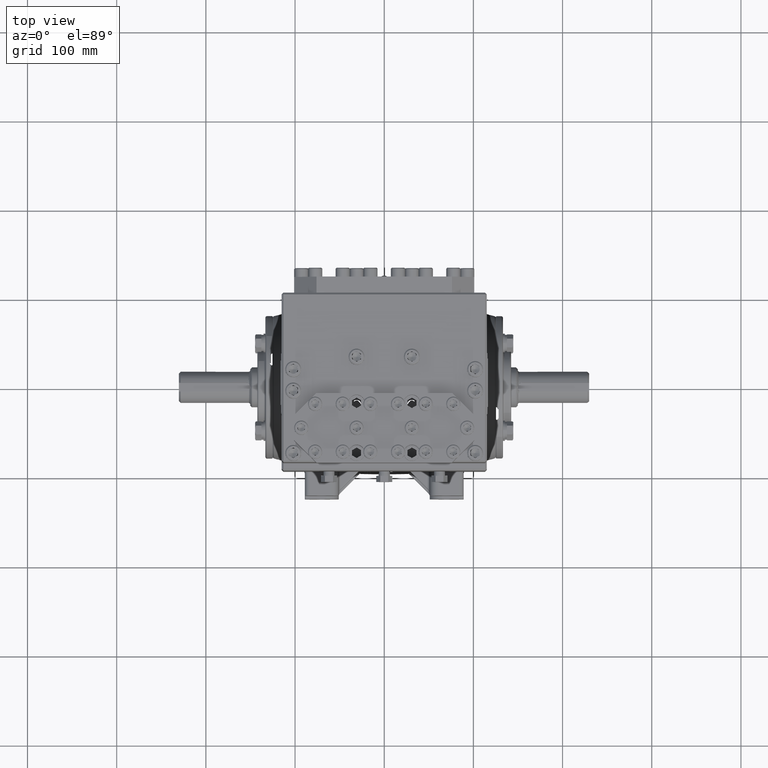
[diagram: clean part render]
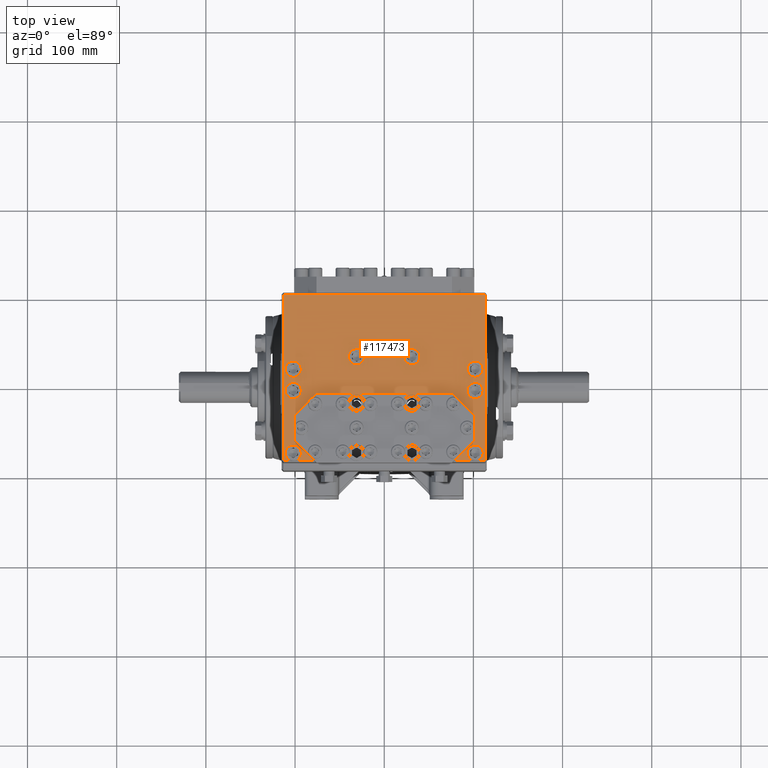
[diagram: same view with one face highlighted and labeled with its STEP entity id]
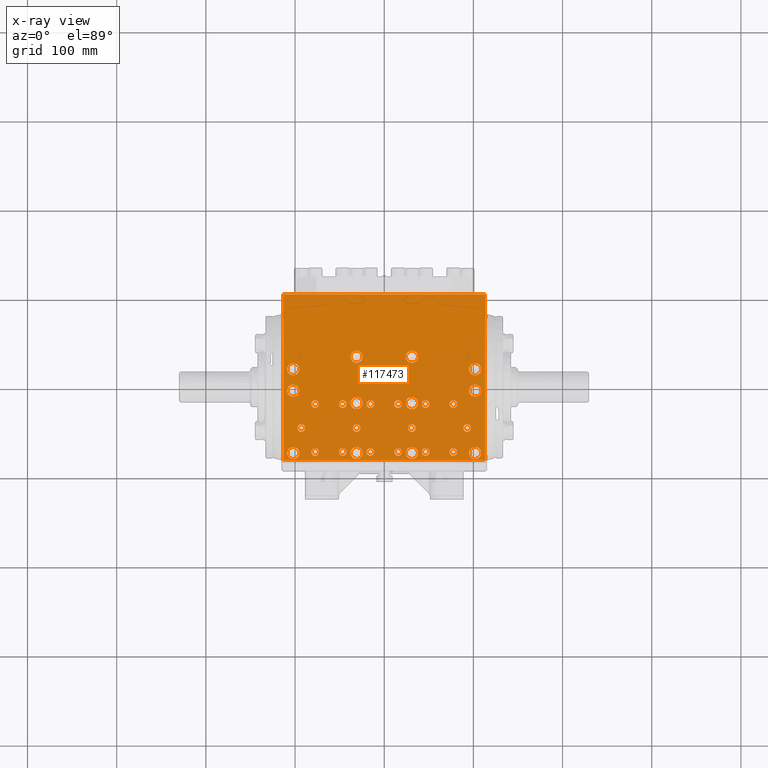
[diagram: x-ray of the same camera — body ghosted, the highlighted face saturated]
A machine part, top view. The second image highlights one B-rep face of the part: STEP entity #117473.
The next image is the same camera in x-ray: the body ghosted, the highlighted face saturated — about 0% of this face is hidden behind the body in this view.
In plain terms, the highlighted planar face has unit normal (0, 0, -1).
Its self-contained STEP definition (entity closure, byte-faithful):
#231 = EDGE_LOOP ( 'NONE', ( #53574, #17172 ) ) ;
#654 = VERTEX_POINT ( 'NONE', #63499 ) ;
#691 = CARTESIAN_POINT ( 'NONE',  ( 1.486220472440945795, -1.023622047244092892, 18.66141732283464805 ) ) ;
#767 = EDGE_CURVE ( 'NONE', #62377, #109572, #72662, .T. ) ;
#919 = LINE ( 'NONE', #37255, #89101 ) ;
#1357 = DIRECTION ( 'NONE',  ( -0.0000000000000000000, -0.0000000000000000000, 1.000000000000000000 ) ) ;
#1542 = CARTESIAN_POINT ( 'NONE',  ( 4.448818897637798031, -3.543307086614170931, 18.66141732283464805 ) ) ;
#1677 = DIRECTION ( 'NONE',  ( -0.0000000000000000000, -0.0000000000000000000, 1.000000000000000000 ) ) ;
#1749 = AXIS2_PLACEMENT_3D ( 'NONE', #16543, #80413, #116817 ) ;
#2075 = DIRECTION ( 'NONE',  ( 1.000000000000000000, 0.0000000000000000000, 0.0000000000000000000 ) ) ;
#2335 = AXIS2_PLACEMENT_3D ( 'NONE', #67464, #103953, #22153 ) ;
#2367 = EDGE_LOOP ( 'NONE', ( #57965, #40329 ) ) ;
#2385 = VERTEX_POINT ( 'NONE', #67120 ) ;
#2549 = DIRECTION ( 'NONE',  ( -0.0000000000000000000, -0.0000000000000000000, 1.000000000000000000 ) ) ;
#3156 = ORIENTED_EDGE ( 'NONE', *, *, #104555, .T. ) ;
#3295 = EDGE_CURVE ( 'NONE', #83297, #21803, #85738, .T. ) ;
#3501 = CARTESIAN_POINT ( 'NONE',  ( -3.749999999999999556, 0.4724409448818914226, 18.66141732283464805 ) ) ;
#3792 = CARTESIAN_POINT ( 'NONE',  ( -1.486220472440943130, -3.228346456692912092, 18.66141732283464805 ) ) ;
#3861 = EDGE_CURVE ( 'NONE', #77365, #69413, #9790, .T. ) ;
#3954 = AXIS2_PLACEMENT_3D ( 'NONE', #88899, #7112, #43461 ) ;
#4010 = FACE_BOUND ( 'NONE', #62597, .T. ) ;
#4183 = DIRECTION ( 'NONE',  ( -0.0000000000000000000, -0.0000000000000000000, 1.000000000000000000 ) ) ;
#4600 = FACE_BOUND ( 'NONE', #75060, .T. ) ;
#4607 = ORIENTED_EDGE ( 'NONE', *, *, #26883, .F. ) ;
#4669 = CIRCLE ( 'NONE', #71360, 0.1673228346456689108 ) ;
#4858 = VERTEX_POINT ( 'NONE', #38227 ) ;
#4898 = DIRECTION ( 'NONE',  ( -0.0000000000000000000, -0.0000000000000000000, 1.000000000000000000 ) ) ;
#4955 = CARTESIAN_POINT ( 'NONE',  ( -0.6102362204724381956, -1.069024113491431560, 18.66141732283464805 ) ) ;
#5198 = AXIS2_PLACEMENT_3D ( 'NONE', #74025, #110447, #28613 ) ;
#5547 = DIRECTION ( 'NONE',  ( -0.0000000000000000000, -0.0000000000000000000, 1.000000000000000000 ) ) ;
#5767 = VERTEX_POINT ( 'NONE', #46868 ) ;
#6239 = CARTESIAN_POINT ( 'NONE',  ( -2.883858267716538748, -3.182944390445576310, 18.66141732283464805 ) ) ;
#6495 = ORIENTED_EDGE ( 'NONE', *, *, #43940, .F. ) ;
#6823 = DIRECTION ( 'NONE',  ( 1.000000000000000000, 0.0000000000000000000, 0.0000000000000000000 ) ) ;
#6870 = AXIS2_PLACEMENT_3D ( 'NONE', #25161, #61507, #98032 ) ;
#6876 = ORIENTED_EDGE ( 'NONE', *, *, #8300, .F. ) ;
#6924 = ORIENTED_EDGE ( 'NONE', *, *, #85163, .F. ) ;
#6948 = EDGE_LOOP ( 'NONE', ( #4607, #16210 ) ) ;
#7112 = DIRECTION ( 'NONE',  ( -0.0000000000000000000, -0.0000000000000000000, 1.000000000000000000 ) ) ;
#7711 = DIRECTION ( 'NONE',  ( -0.0000000000000000000, -0.0000000000000000000, 1.000000000000000000 ) ) ;
#7732 = AXIS2_PLACEMENT_3D ( 'NONE', #111251, #29416, #65815 ) ;
#7925 = ORIENTED_EDGE ( 'NONE', *, *, #31826, .F. ) ;
#8300 = EDGE_CURVE ( 'NONE', #33305, #72351, #14821, .T. ) ;
#8882 = VERTEX_POINT ( 'NONE', #76394 ) ;
#9106 = ORIENTED_EDGE ( 'NONE', *, *, #109633, .F. ) ;
#9121 = CARTESIAN_POINT ( 'NONE',  ( -0.4429133858267703672, -3.182944390445575866, 18.66141732283464805 ) ) ;
#9344 = DIRECTION ( 'NONE',  ( 1.000000000000000000, 0.0000000000000000000, 0.0000000000000000000 ) ) ;
#9375 = DIRECTION ( 'NONE',  ( 1.000000000000000000, 0.0000000000000000000, 0.0000000000000000000 ) ) ;
#9517 = DIRECTION ( 'NONE',  ( -0.0000000000000000000, -0.0000000000000000000, 1.000000000000000000 ) ) ;
#9647 = EDGE_LOOP ( 'NONE', ( #86387, #57662 ) ) ;
#9790 = CIRCLE ( 'NONE', #61186, 0.1673228346456689108 ) ;
#9861 = ORIENTED_EDGE ( 'NONE', *, *, #118156, .F. ) ;
#9950 = DIRECTION ( 'NONE',  ( -0.0000000000000000000, -0.0000000000000000000, 1.000000000000000000 ) ) ;
#10308 = VERTEX_POINT ( 'NONE', #92476 ) ;
#10837 = DIRECTION ( 'NONE',  ( -0.0000000000000000000, -0.0000000000000000000, 1.000000000000000000 ) ) ;
#11141 = DIRECTION ( 'NONE',  ( 1.000000000000000000, 0.0000000000000000000, 0.0000000000000000000 ) ) ;
#11692 = AXIS2_PLACEMENT_3D ( 'NONE', #85946, #4183, #40520 ) ;
#12022 = CIRCLE ( 'NONE', #78733, 0.2657480314960626866 ) ;
#12109 = CARTESIAN_POINT ( 'NONE',  ( -1.053149606299212948, -2.125984251968504157, 18.66141732283464805 ) ) ;
#12200 = ORIENTED_EDGE ( 'NONE', *, *, #89903, .F. ) ;
#12577 = AXIS2_PLACEMENT_3D ( 'NONE', #35110, #71555, #108012 ) ;
#12780 = DIRECTION ( 'NONE',  ( 1.000000000000000000, 0.0000000000000000000, 0.0000000000000000000 ) ) ;
#12854 = CARTESIAN_POINT ( 'NONE',  ( -0.7775590551181070786, -1.069024113491431560, 18.66141732283464805 ) ) ;
#12969 = FACE_BOUND ( 'NONE', #72077, .T. ) ;
#13051 = CARTESIAN_POINT ( 'NONE',  ( 4.448818897637798031, 3.779527559055121166, 18.66141732283464805 ) ) ;
#13425 = VERTEX_POINT ( 'NONE', #23093 ) ;
#13487 = CARTESIAN_POINT ( 'NONE',  ( 3.051181102362207742, -3.182944390445576754, 18.66141732283464805 ) ) ;
#13544 = FACE_BOUND ( 'NONE', #52581, .T. ) ;
#13615 = DIRECTION ( 'NONE',  ( 1.000000000000000000, 0.0000000000000000000, 0.0000000000000000000 ) ) ;
#13785 = EDGE_LOOP ( 'NONE', ( #113084, #18094 ) ) ;
#13818 = VERTEX_POINT ( 'NONE', #6239 ) ;
#13828 = CARTESIAN_POINT ( 'NONE',  ( 0.6102362204724385286, -1.069024113491431560, 18.66141732283464805 ) ) ;
#14043 = ORIENTED_EDGE ( 'NONE', *, *, #49530, .F. ) ;
#14138 = DIRECTION ( 'NONE',  ( 0.0000000000000000000, 0.0000000000000000000, -1.000000000000000000 ) ) ;
#14196 = CIRCLE ( 'NONE', #80917, 0.1673228346456689108 ) ;
#14276 = EDGE_CURVE ( 'NONE', #63968, #28327, #95436, .T. ) ;
#14605 = AXIS2_PLACEMENT_3D ( 'NONE', #86679, #4898, #41240 ) ;
#14821 = CIRCLE ( 'NONE', #81541, 0.2657480314960625756 ) ;
#14867 = DIRECTION ( 'NONE',  ( 1.000000000000000000, 0.0000000000000000000, 0.0000000000000000000 ) ) ;
#15031 = EDGE_CURVE ( 'NONE', #79754, #73040, #84053, .T. ) ;
#15680 = EDGE_LOOP ( 'NONE', ( #14043, #33947 ) ) ;
#15946 = DIRECTION ( 'NONE',  ( -0.0000000000000000000, -0.0000000000000000000, 1.000000000000000000 ) ) ;
#15961 = DIRECTION ( 'NONE',  ( -0.0000000000000000000, -0.0000000000000000000, 1.000000000000000000 ) ) ;
#16071 = CARTESIAN_POINT ( 'NONE',  ( 4.015748031496063852, -3.228346456692912092, 18.66141732283464805 ) ) ;
#16210 = ORIENTED_EDGE ( 'NONE', *, *, #3295, .F. ) ;
#16211 = CARTESIAN_POINT ( 'NONE',  ( 4.015748031496062964, -0.4724409448818881474, 18.66141732283464805 ) ) ;
#16310 = ORIENTED_EDGE ( 'NONE', *, *, #53047, .F. ) ;
#16317 = DIRECTION ( 'NONE',  ( 1.000000000000000000, 0.0000000000000000000, 0.0000000000000000000 ) ) ;
#16543 = CARTESIAN_POINT ( 'NONE',  ( -0.6102362204724381956, -1.069024113491431560, 18.66141732283464805 ) ) ;
#17124 = VERTEX_POINT ( 'NONE', #76003 ) ;
#17172 = ORIENTED_EDGE ( 'NONE', *, *, #84336, .F. ) ;
#17352 = AXIS2_PLACEMENT_3D ( 'NONE', #91765, #9950, #46330 ) ;
#17983 = CIRCLE ( 'NONE', #84704, 0.1673228346456689108 ) ;
#17993 = CARTESIAN_POINT ( 'NONE',  ( 0.7775590551181068566, -3.182944390445576310, 18.66141732283464805 ) ) ;
#18001 = DIRECTION ( 'NONE',  ( 1.000000000000000000, 0.0000000000000000000, 0.0000000000000000000 ) ) ;
#18094 = ORIENTED_EDGE ( 'NONE', *, *, #105389, .F. ) ;
#18824 = VERTEX_POINT ( 'NONE', #43264 ) ;
#18994 = AXIS2_PLACEMENT_3D ( 'NONE', #97777, #15946, #52331 ) ;
#19483 = CARTESIAN_POINT ( 'NONE',  ( 0.6102362204724379735, -3.182944390445576310, 18.66141732283464805 ) ) ;
#19566 = CARTESIAN_POINT ( 'NONE',  ( -4.448818897637795367, 3.858267716535435543, 18.66141732283464805 ) ) ;
#19723 = CARTESIAN_POINT ( 'NONE',  ( -1.830708661417320249, -3.182944390445576310, 18.66141732283464805 ) ) ;
#20137 = CARTESIAN_POINT ( 'NONE',  ( -4.281496062992125040, 0.4724409448818914226, 18.66141732283464805 ) ) ;
#21032 = AXIS2_PLACEMENT_3D ( 'NONE', #83113, #1357, #37690 ) ;
#21469 = VERTEX_POINT ( 'NONE', #3792 ) ;
#21551 = DIRECTION ( 'NONE',  ( 1.000000000000000000, 0.0000000000000000000, 0.0000000000000000000 ) ) ;
#21616 = CIRCLE ( 'NONE', #88355, 0.1673228346456689108 ) ;
#21732 = ORIENTED_EDGE ( 'NONE', *, *, #58156, .F. ) ;
#21803 = VERTEX_POINT ( 'NONE', #99842 ) ;
#21921 = FACE_BOUND ( 'NONE', #42087, .T. ) ;
#22153 = DIRECTION ( 'NONE',  ( 1.000000000000000000, 0.0000000000000000000, 0.0000000000000000000 ) ) ;
#22504 = FACE_BOUND ( 'NONE', #9647, .T. ) ;
#22506 = VERTEX_POINT ( 'NONE', #116249 ) ;
#22761 = VERTEX_POINT ( 'NONE', #85733 ) ;
#22912 = CIRCLE ( 'NONE', #38084, 0.1673228346456689108 ) ;
#23087 = FACE_BOUND ( 'NONE', #75796, .T. ) ;
#23093 = CARTESIAN_POINT ( 'NONE',  ( 1.663385826771656362, -1.069024113491431782, 18.66141732283464805 ) ) ;
#23365 = DIRECTION ( 'NONE',  ( 1.000000000000000000, 0.0000000000000000000, 0.0000000000000000000 ) ) ;
#23540 = VERTEX_POINT ( 'NONE', #69708 ) ;
#23826 = DIRECTION ( 'NONE',  ( 1.000000000000000000, 0.0000000000000000000, 0.0000000000000000000 ) ) ;
#23889 = CIRCLE ( 'NONE', #90650, 0.1673228346456689108 ) ;
#24041 = LINE ( 'NONE', #60397, #55405 ) ;
#24161 = DIRECTION ( 'NONE',  ( -0.0000000000000000000, -0.0000000000000000000, 1.000000000000000000 ) ) ;
#24227 = VECTOR ( 'NONE', #55924, 39.37007874015748143 ) ;
#24230 = EDGE_LOOP ( 'NONE', ( #77858, #39438 ) ) ;
#24325 = AXIS2_PLACEMENT_3D ( 'NONE', #79595, #115990, #34162 ) ;
#25119 = CIRCLE ( 'NONE', #91878, 0.2657480314960625756 ) ;
#25140 = VERTEX_POINT ( 'NONE', #56151 ) ;
#25144 = EDGE_CURVE ( 'NONE', #13425, #46384, #83422, .T. ) ;
#25161 = CARTESIAN_POINT ( 'NONE',  ( -3.051181102362207742, -1.069024113491434669, 18.66141732283464805 ) ) ;
#25233 = ORIENTED_EDGE ( 'NONE', *, *, #51882, .F. ) ;
#25401 = CARTESIAN_POINT ( 'NONE',  ( -3.749999999999999556, -0.4724409448818881474, 18.66141732283464805 ) ) ;
#25655 = DIRECTION ( 'NONE',  ( -0.0000000000000000000, -0.0000000000000000000, 1.000000000000000000 ) ) ;
#26811 = AXIS2_PLACEMENT_3D ( 'NONE', #58909, #95423, #13615 ) ;
#26883 = EDGE_CURVE ( 'NONE', #21803, #83297, #79845, .T. ) ;
#27219 = DIRECTION ( 'NONE',  ( -0.0000000000000000000, -0.0000000000000000000, 1.000000000000000000 ) ) ;
#27271 = ORIENTED_EDGE ( 'NONE', *, *, #28012, .F. ) ;
#27319 = EDGE_LOOP ( 'NONE', ( #64968, #37395 ) ) ;
#27576 = AXIS2_PLACEMENT_3D ( 'NONE', #83441, #1677, #37996 ) ;
#28012 = EDGE_CURVE ( 'NONE', #21469, #8882, #116209, .T. ) ;
#28327 = VERTEX_POINT ( 'NONE', #84119 ) ;
#28580 = AXIS2_PLACEMENT_3D ( 'NONE', #54673, #91158, #9344 ) ;
#28613 = DIRECTION ( 'NONE',  ( 1.000000000000000000, 0.0000000000000000000, 0.0000000000000000000 ) ) ;
#28643 = DIRECTION ( 'NONE',  ( 1.000000000000000000, 0.0000000000000000000, 0.0000000000000000000 ) ) ;
#28779 = EDGE_CURVE ( 'NONE', #46384, #13425, #22912, .T. ) ;
#28932 = CARTESIAN_POINT ( 'NONE',  ( 1.486220472440945795, 1.023622047244096001, 18.66141732283464805 ) ) ;
#28956 = EDGE_CURVE ( 'NONE', #18824, #4858, #72482, .T. ) ;
#29250 = EDGE_CURVE ( 'NONE', #84736, #62804, #116375, .T. ) ;
#29400 = CIRCLE ( 'NONE', #96216, 0.2657480314960626866 ) ;
#29413 = EDGE_CURVE ( 'NONE', #54802, #61713, #99301, .T. ) ;
#29416 = DIRECTION ( 'NONE',  ( -0.0000000000000000000, -0.0000000000000000000, 1.000000000000000000 ) ) ;
#29511 = AXIS2_PLACEMENT_3D ( 'NONE', #54712, #91194, #9375 ) ;
#29801 = DIRECTION ( 'NONE',  ( 1.000000000000000000, 0.0000000000000000000, 0.0000000000000000000 ) ) ;
#30198 = ORIENTED_EDGE ( 'NONE', *, *, #48201, .F. ) ;
#30227 = CARTESIAN_POINT ( 'NONE',  ( 1.220472440944883052, -1.023622047244092892, 18.66141732283464805 ) ) ;
#30561 = DIRECTION ( 'NONE',  ( -0.0000000000000000000, -0.0000000000000000000, 1.000000000000000000 ) ) ;
#31019 = DIRECTION ( 'NONE',  ( 1.000000000000000000, 0.0000000000000000000, 0.0000000000000000000 ) ) ;
#31086 = ORIENTED_EDGE ( 'NONE', *, *, #99622, .F. ) ;
#31129 = EDGE_LOOP ( 'NONE', ( #69135, #73697 ) ) ;
#31184 = EDGE_CURVE ( 'NONE', #93010, #22761, #59122, .T. ) ;
#31210 = CARTESIAN_POINT ( 'NONE',  ( -4.015748031496062076, -3.228346456692912092, 18.66141732283464805 ) ) ;
#31240 = CARTESIAN_POINT ( 'NONE',  ( 1.663385826771651255, -3.182944390445576754, 18.66141732283464805 ) ) ;
#31395 = FACE_BOUND ( 'NONE', #42346, .T. ) ;
#31405 = EDGE_CURVE ( 'NONE', #50108, #23540, #93585, .T. ) ;
#31409 = DIRECTION ( 'NONE',  ( 1.000000000000000000, 0.0000000000000000000, 0.0000000000000000000 ) ) ;
#31414 = AXIS2_PLACEMENT_3D ( 'NONE', #40179, #76656, #113080 ) ;
#31826 = EDGE_CURVE ( 'NONE', #35771, #90805, #68784, .T. ) ;
#31895 = AXIS2_PLACEMENT_3D ( 'NONE', #92655, #10837, #47209 ) ;
#31976 = FACE_BOUND ( 'NONE', #112338, .T. ) ;
#32286 = LINE ( 'NONE', #68728, #73426 ) ;
#32536 = AXIS2_PLACEMENT_3D ( 'NONE', #16071, #52455, #88919 ) ;
#33097 = AXIS2_PLACEMENT_3D ( 'NONE', #66851, #103356, #21551 ) ;
#33305 = VERTEX_POINT ( 'NONE', #41443 ) ;
#33357 = CIRCLE ( 'NONE', #100162, 0.1673228346456689108 ) ;
#33532 = CARTESIAN_POINT ( 'NONE',  ( 2.883858267716538748, -1.069024113491434669, 18.66141732283464805 ) ) ;
#33629 = AXIS2_PLACEMENT_3D ( 'NONE', #75218, #111634, #29801 ) ;
#33658 = CIRCLE ( 'NONE', #100464, 0.1673228346456689108 ) ;
#33885 = VERTEX_POINT ( 'NONE', #691 ) ;
#33947 = ORIENTED_EDGE ( 'NONE', *, *, #86950, .F. ) ;
#34131 = DIRECTION ( 'NONE',  ( -0.0000000000000000000, -0.0000000000000000000, 1.000000000000000000 ) ) ;
#34162 = DIRECTION ( 'NONE',  ( 1.000000000000000000, 0.0000000000000000000, 0.0000000000000000000 ) ) ;
#34516 = CARTESIAN_POINT ( 'NONE',  ( -3.661417322834645827, -2.125984251968503713, 18.66141732283464805 ) ) ;
#34991 = EDGE_CURVE ( 'NONE', #654, #10308, #21616, .T. ) ;
#35110 = CARTESIAN_POINT ( 'NONE',  ( 4.015748031496062964, -0.4724409448818881474, 18.66141732283464805 ) ) ;
#35145 = AXIS2_PLACEMENT_3D ( 'NONE', #91334, #9517, #45889 ) ;
#35156 = CARTESIAN_POINT ( 'NONE',  ( 1.220472440944881942, -2.125984251968504157, 18.66141732283464805 ) ) ;
#35378 = CARTESIAN_POINT ( 'NONE',  ( -1.830708661417320249, -1.069024113491434447, 18.66141732283464805 ) ) ;
#35389 = AXIS2_PLACEMENT_3D ( 'NONE', #109036, #27219, #63584 ) ;
#35771 = VERTEX_POINT ( 'NONE', #97508 ) ;
#35905 = CARTESIAN_POINT ( 'NONE',  ( -1.220472440944880832, -1.023622047244092892, 18.66141732283464805 ) ) ;
#36384 = AXIS2_PLACEMENT_3D ( 'NONE', #47386, #83821, #2075 ) ;
#36561 = EDGE_CURVE ( 'NONE', #28327, #63968, #29400, .T. ) ;
#36902 = VERTEX_POINT ( 'NONE', #62624 ) ;
#37255 = CARTESIAN_POINT ( 'NONE',  ( -4.527559055118109299, 3.779527559055121166, 18.66141732283464805 ) ) ;
#37395 = ORIENTED_EDGE ( 'NONE', *, *, #49646, .F. ) ;
#37580 = CARTESIAN_POINT ( 'NONE',  ( -3.051181102362207742, -3.182944390445576310, 18.66141732283464805 ) ) ;
#37690 = DIRECTION ( 'NONE',  ( 1.000000000000000000, 0.0000000000000000000, 0.0000000000000000000 ) ) ;
#37996 = DIRECTION ( 'NONE',  ( 1.000000000000000000, 0.0000000000000000000, 0.0000000000000000000 ) ) ;
#38084 = AXIS2_PLACEMENT_3D ( 'NONE', #61621, #98143, #16317 ) ;
#38227 = CARTESIAN_POINT ( 'NONE',  ( -0.9547244094488183119, -1.023622047244092892, 18.66141732283464805 ) ) ;
#38430 = CIRCLE ( 'NONE', #105240, 0.1673228346456689108 ) ;
#38685 = EDGE_LOOP ( 'NONE', ( #97675, #73993 ) ) ;
#38763 = AXIS2_PLACEMENT_3D ( 'NONE', #34516, #7711, #44069 ) ;
#38855 = EDGE_CURVE ( 'NONE', #22761, #93010, #14196, .T. ) ;
#38879 = DIRECTION ( 'NONE',  ( 1.000000000000000000, 0.0000000000000000000, 0.0000000000000000000 ) ) ;
#39438 = ORIENTED_EDGE ( 'NONE', *, *, #14276, .F. ) ;
#39830 = EDGE_CURVE ( 'NONE', #61713, #54802, #67648, .T. ) ;
#39838 = VERTEX_POINT ( 'NONE', #31240 ) ;
#40179 = CARTESIAN_POINT ( 'NONE',  ( -4.015748031496062076, -0.4724409448818881474, 18.66141732283464805 ) ) ;
#40229 = EDGE_CURVE ( 'NONE', #52022, #96657, #23889, .T. ) ;
#40329 = ORIENTED_EDGE ( 'NONE', *, *, #103970, .F. ) ;
#40342 = FACE_BOUND ( 'NONE', #31129, .T. ) ;
#40396 = AXIS2_PLACEMENT_3D ( 'NONE', #56466, #92972, #11141 ) ;
#40426 = AXIS2_PLACEMENT_3D ( 'NONE', #105966, #24161, #60514 ) ;
#40520 = DIRECTION ( 'NONE',  ( 1.000000000000000000, 0.0000000000000000000, 0.0000000000000000000 ) ) ;
#40743 = CIRCLE ( 'NONE', #107540, 0.1673228346456689108 ) ;
#40941 = FACE_BOUND ( 'NONE', #108741, .T. ) ;
#41055 = EDGE_CURVE ( 'NONE', #10308, #654, #58264, .T. ) ;
#41240 = DIRECTION ( 'NONE',  ( 1.000000000000000000, 0.0000000000000000000, 0.0000000000000000000 ) ) ;
#41307 = DIRECTION ( 'NONE',  ( -0.0000000000000000000, -0.0000000000000000000, 1.000000000000000000 ) ) ;
#41443 = CARTESIAN_POINT ( 'NONE',  ( -0.9547244094488183119, 1.023622047244096001, 18.66141732283464805 ) ) ;
#41634 = ORIENTED_EDGE ( 'NONE', *, *, #115887, .F. ) ;
#41888 = DIRECTION ( 'NONE',  ( 1.000000000000000000, 0.0000000000000000000, 0.0000000000000000000 ) ) ;
#42021 = AXIS2_PLACEMENT_3D ( 'NONE', #87327, #5547, #41888 ) ;
#42087 = EDGE_LOOP ( 'NONE', ( #41634, #30198 ) ) ;
#42346 = EDGE_LOOP ( 'NONE', ( #58687, #16310 ) ) ;
#42397 = EDGE_CURVE ( 'NONE', #17124, #52566, #101351, .T. ) ;
#42626 = EDGE_CURVE ( 'NONE', #110627, #17124, #919, .T. ) ;
#43264 = CARTESIAN_POINT ( 'NONE',  ( -1.486220472440943574, -1.023622047244092892, 18.66141732283464805 ) ) ;
#43461 = DIRECTION ( 'NONE',  ( 1.000000000000000000, 0.0000000000000000000, 0.0000000000000000000 ) ) ;
#43570 = EDGE_LOOP ( 'NONE', ( #65560, #47530 ) ) ;
#43762 = ORIENTED_EDGE ( 'NONE', *, *, #31184, .F. ) ;
#43878 = AXIS2_PLACEMENT_3D ( 'NONE', #76829, #113245, #31409 ) ;
#43940 = EDGE_CURVE ( 'NONE', #73040, #79754, #87387, .T. ) ;
#44069 = DIRECTION ( 'NONE',  ( 1.000000000000000000, 0.0000000000000000000, 0.0000000000000000000 ) ) ;
#44448 = EDGE_CURVE ( 'NONE', #45614, #66456, #91971, .T. ) ;
#44710 = ORIENTED_EDGE ( 'NONE', *, *, #78937, .F. ) ;
#44973 = AXIS2_PLACEMENT_3D ( 'NONE', #95951, #14138, #50508 ) ;
#45614 = VERTEX_POINT ( 'NONE', #92987 ) ;
#45889 = DIRECTION ( 'NONE',  ( 1.000000000000000000, 0.0000000000000000000, 0.0000000000000000000 ) ) ;
#46330 = DIRECTION ( 'NONE',  ( 1.000000000000000000, 0.0000000000000000000, 0.0000000000000000000 ) ) ;
#46384 = VERTEX_POINT ( 'NONE', #115123 ) ;
#46544 = AXIS2_PLACEMENT_3D ( 'NONE', #56797, #2549, #38879 ) ;
#46868 = CARTESIAN_POINT ( 'NONE',  ( 0.7775590551181074117, -1.069024113491431560, 18.66141732283464805 ) ) ;
#46896 = EDGE_CURVE ( 'NONE', #25140, #65880, #40743, .T. ) ;
#47175 = ORIENTED_EDGE ( 'NONE', *, *, #31405, .F. ) ;
#47209 = DIRECTION ( 'NONE',  ( 1.000000000000000000, 0.0000000000000000000, 0.0000000000000000000 ) ) ;
#47375 = VERTEX_POINT ( 'NONE', #33532 ) ;
#47386 = CARTESIAN_POINT ( 'NONE',  ( -4.015748031496062076, 0.4724409448818914226, 18.66141732283464805 ) ) ;
#47530 = ORIENTED_EDGE ( 'NONE', *, *, #46896, .F. ) ;
#47752 = AXIS2_PLACEMENT_3D ( 'NONE', #74056, #110477, #28643 ) ;
#47999 = CARTESIAN_POINT ( 'NONE',  ( 4.281496062992125928, -0.4724409448818881474, 18.66141732283464805 ) ) ;
#48201 = EDGE_CURVE ( 'NONE', #58868, #73782, #81025, .T. ) ;
#48865 = AXIS2_PLACEMENT_3D ( 'NONE', #19483, #55845, #92346 ) ;
#49185 = ORIENTED_EDGE ( 'NONE', *, *, #117377, .F. ) ;
#49319 = FACE_BOUND ( 'NONE', #64312, .T. ) ;
#49357 = CARTESIAN_POINT ( 'NONE',  ( 0.4429133858267691459, -3.182944390445576310, 18.66141732283464805 ) ) ;
#49530 = EDGE_CURVE ( 'NONE', #74122, #91011, #98101, .T. ) ;
#49646 = EDGE_CURVE ( 'NONE', #67888, #5767, #4669, .T. ) ;
#49851 = DIRECTION ( 'NONE',  ( -0.0000000000000000000, -0.0000000000000000000, 1.000000000000000000 ) ) ;
#49908 = FACE_BOUND ( 'NONE', #38685, .T. ) ;
#50108 = VERTEX_POINT ( 'NONE', #28932 ) ;
#50193 = DIRECTION ( 'NONE',  ( -0.0000000000000000000, -0.0000000000000000000, 1.000000000000000000 ) ) ;
#50508 = DIRECTION ( 'NONE',  ( -1.000000000000000000, 0.0000000000000000000, -0.0000000000000000000 ) ) ;
#50694 = CIRCLE ( 'NONE', #65922, 0.2657480314960625756 ) ;
#50785 = EDGE_LOOP ( 'NONE', ( #25233, #52771 ) ) ;
#51643 = ORIENTED_EDGE ( 'NONE', *, *, #3861, .F. ) ;
#51789 = CARTESIAN_POINT ( 'NONE',  ( 3.218503937007876292, -3.182944390445576754, 18.66141732283464805 ) ) ;
#51882 = EDGE_CURVE ( 'NONE', #62804, #84736, #63984, .T. ) ;
#52022 = VERTEX_POINT ( 'NONE', #110341 ) ;
#52156 = CARTESIAN_POINT ( 'NONE',  ( -1.220472440944880832, 1.023622047244096001, 18.66141732283464805 ) ) ;
#52331 = DIRECTION ( 'NONE',  ( 1.000000000000000000, 0.0000000000000000000, 0.0000000000000000000 ) ) ;
#52349 = DIRECTION ( 'NONE',  ( 1.000000000000000000, 0.0000000000000000000, 0.0000000000000000000 ) ) ;
#52455 = DIRECTION ( 'NONE',  ( -0.0000000000000000000, -0.0000000000000000000, 1.000000000000000000 ) ) ;
#52566 = VERTEX_POINT ( 'NONE', #98085 ) ;
#52581 = EDGE_LOOP ( 'NONE', ( #68035, #59124 ) ) ;
#52589 = DIRECTION ( 'NONE',  ( -0.0000000000000000000, -0.0000000000000000000, 1.000000000000000000 ) ) ;
#52771 = ORIENTED_EDGE ( 'NONE', *, *, #29250, .F. ) ;
#52887 = CARTESIAN_POINT ( 'NONE',  ( 2.883858267716538748, -3.182944390445576754, 18.66141732283464805 ) ) ;
#53047 = EDGE_CURVE ( 'NONE', #114700, #61112, #33658, .T. ) ;
#53181 = CIRCLE ( 'NONE', #1749, 0.1673228346456689108 ) ;
#53574 = ORIENTED_EDGE ( 'NONE', *, *, #108761, .F. ) ;
#53695 = CARTESIAN_POINT ( 'NONE',  ( -1.663385826771651255, -3.182944390445576310, 18.66141732283464805 ) ) ;
#53775 = CIRCLE ( 'NONE', #2335, 0.1673228346456689108 ) ;
#54247 = EDGE_CURVE ( 'NONE', #79558, #22506, #75798, .T. ) ;
#54303 = CARTESIAN_POINT ( 'NONE',  ( -4.281496062992125040, -0.4724409448818881474, 18.66141732283464805 ) ) ;
#54673 = CARTESIAN_POINT ( 'NONE',  ( 1.830708661417320249, -3.182944390445576754, 18.66141732283464805 ) ) ;
#54712 = CARTESIAN_POINT ( 'NONE',  ( -3.661417322834645827, -2.125984251968503713, 18.66141732283464805 ) ) ;
#54760 = EDGE_LOOP ( 'NONE', ( #92165, #43762 ) ) ;
#54802 = VERTEX_POINT ( 'NONE', #54303 ) ;
#55347 = CIRCLE ( 'NONE', #3954, 0.2657480314960626866 ) ;
#55405 = VECTOR ( 'NONE', #96923, 39.37007874015748143 ) ;
#55845 = DIRECTION ( 'NONE',  ( -0.0000000000000000000, -0.0000000000000000000, 1.000000000000000000 ) ) ;
#55924 = DIRECTION ( 'NONE',  ( 0.0000000000000000000, -1.000000000000000000, 0.0000000000000000000 ) ) ;
#56083 = DIRECTION ( 'NONE',  ( -0.0000000000000000000, -0.0000000000000000000, 1.000000000000000000 ) ) ;
#56151 = CARTESIAN_POINT ( 'NONE',  ( -1.998031496062989021, -3.182944390445576310, 18.66141732283464805 ) ) ;
#56466 = CARTESIAN_POINT ( 'NONE',  ( 4.015748031496062964, 0.4724409448818914226, 18.66141732283464805 ) ) ;
#56604 = CIRCLE ( 'NONE', #5198, 0.2657480314960625756 ) ;
#56797 = CARTESIAN_POINT ( 'NONE',  ( 0.6102362204724379735, -3.182944390445576310, 18.66141732283464805 ) ) ;
#57175 = EDGE_CURVE ( 'NONE', #23540, #50108, #112430, .T. ) ;
#57662 = ORIENTED_EDGE ( 'NONE', *, *, #100754, .F. ) ;
#57816 = AXIS2_PLACEMENT_3D ( 'NONE', #69158, #105627, #23826 ) ;
#57965 = ORIENTED_EDGE ( 'NONE', *, *, #77361, .F. ) ;
#58089 = CARTESIAN_POINT ( 'NONE',  ( -1.220472440944880610, -3.228346456692912092, 18.66141732283464805 ) ) ;
#58151 = EDGE_LOOP ( 'NONE', ( #47175, #83419 ) ) ;
#58156 = EDGE_CURVE ( 'NONE', #69413, #77365, #53181, .T. ) ;
#58264 = CIRCLE ( 'NONE', #6870, 0.1673228346456689108 ) ;
#58266 = FACE_BOUND ( 'NONE', #84639, .T. ) ;
#58687 = ORIENTED_EDGE ( 'NONE', *, *, #117985, .F. ) ;
#58809 = AXIS2_PLACEMENT_3D ( 'NONE', #63306, #99819, #18001 ) ;
#58850 = FACE_OUTER_BOUND ( 'NONE', #65328, .T. ) ;
#58868 = VERTEX_POINT ( 'NONE', #79960 ) ;
#58909 = CARTESIAN_POINT ( 'NONE',  ( -1.220472440944881942, -2.125984251968504157, 18.66141732283464805 ) ) ;
#59122 = CIRCLE ( 'NONE', #7732, 0.1673228346456689108 ) ;
#59124 = ORIENTED_EDGE ( 'NONE', *, *, #767, .F. ) ;
#59433 = PLANE ( 'NONE',  #44973 ) ;
#60164 = CARTESIAN_POINT ( 'NONE',  ( 4.015748031496062964, 0.4724409448818914226, 18.66141732283464805 ) ) ;
#60211 = ORIENTED_EDGE ( 'NONE', *, *, #65704, .F. ) ;
#60397 = CARTESIAN_POINT ( 'NONE',  ( 4.448818897637798031, 3.858267716535435543, 18.66141732283464805 ) ) ;
#60473 = CARTESIAN_POINT ( 'NONE',  ( 1.998031496062989021, -3.182944390445576754, 18.66141732283464805 ) ) ;
#60514 = DIRECTION ( 'NONE',  ( 1.000000000000000000, 0.0000000000000000000, 0.0000000000000000000 ) ) ;
#60885 = AXIS2_PLACEMENT_3D ( 'NONE', #112392, #30561, #66978 ) ;
#61112 = VERTEX_POINT ( 'NONE', #51789 ) ;
#61186 = AXIS2_PLACEMENT_3D ( 'NONE', #4955, #41307, #77759 ) ;
#61507 = DIRECTION ( 'NONE',  ( -0.0000000000000000000, -0.0000000000000000000, 1.000000000000000000 ) ) ;
#61621 = CARTESIAN_POINT ( 'NONE',  ( 1.830708661417325356, -1.069024113491431782, 18.66141732283464805 ) ) ;
#61713 = VERTEX_POINT ( 'NONE', #25401 ) ;
#62000 = DIRECTION ( 'NONE',  ( 1.000000000000000000, 0.0000000000000000000, 0.0000000000000000000 ) ) ;
#62377 = VERTEX_POINT ( 'NONE', #20137 ) ;
#62597 = EDGE_LOOP ( 'NONE', ( #82355, #67481 ) ) ;
#62624 = CARTESIAN_POINT ( 'NONE',  ( 3.828740157480314821, -2.125984251968504157, 18.66141732283464805 ) ) ;
#62804 = VERTEX_POINT ( 'NONE', #47999 ) ;
#63098 = CIRCLE ( 'NONE', #11692, 0.1673228346456689108 ) ;
#63306 = CARTESIAN_POINT ( 'NONE',  ( 3.051181102362207742, -1.069024113491434669, 18.66141732283464805 ) ) ;
#63499 = CARTESIAN_POINT ( 'NONE',  ( -3.218503937007876292, -1.069024113491434669, 18.66141732283464805 ) ) ;
#63584 = DIRECTION ( 'NONE',  ( 1.000000000000000000, 0.0000000000000000000, 0.0000000000000000000 ) ) ;
#63854 = VERTEX_POINT ( 'NONE', #60473 ) ;
#63968 = VERTEX_POINT ( 'NONE', #117210 ) ;
#63984 = CIRCLE ( 'NONE', #12577, 0.2657480314960626866 ) ;
#64312 = EDGE_LOOP ( 'NONE', ( #51643, #21732 ) ) ;
#64730 = ORIENTED_EDGE ( 'NONE', *, *, #42397, .T. ) ;
#64849 = AXIS2_PLACEMENT_3D ( 'NONE', #16211, #52589, #89057 ) ;
#64861 = CARTESIAN_POINT ( 'NONE',  ( 0.4429133858267696455, -1.069024113491431560, 18.66141732283464805 ) ) ;
#64968 = ORIENTED_EDGE ( 'NONE', *, *, #67598, .F. ) ;
#65328 = EDGE_LOOP ( 'NONE', ( #3156, #75376, #87548, #64730 ) ) ;
#65560 = ORIENTED_EDGE ( 'NONE', *, *, #111421, .F. ) ;
#65573 = CARTESIAN_POINT ( 'NONE',  ( 3.218503937007876292, -1.069024113491434669, 18.66141732283464805 ) ) ;
#65704 = EDGE_CURVE ( 'NONE', #2385, #13818, #53775, .T. ) ;
#65815 = DIRECTION ( 'NONE',  ( 1.000000000000000000, 0.0000000000000000000, 0.0000000000000000000 ) ) ;
#65880 = VERTEX_POINT ( 'NONE', #53695 ) ;
#65922 = AXIS2_PLACEMENT_3D ( 'NONE', #30227, #66629, #103130 ) ;
#66001 = CIRCLE ( 'NONE', #14605, 0.1673228346456689108 ) ;
#66456 = VERTEX_POINT ( 'NONE', #113484 ) ;
#66629 = DIRECTION ( 'NONE',  ( -0.0000000000000000000, -0.0000000000000000000, 1.000000000000000000 ) ) ;
#66727 = VERTEX_POINT ( 'NONE', #65573 ) ;
#66851 = CARTESIAN_POINT ( 'NONE',  ( -0.6102362204724393058, -3.182944390445575866, 18.66141732283464805 ) ) ;
#66978 = DIRECTION ( 'NONE',  ( 1.000000000000000000, 0.0000000000000000000, 0.0000000000000000000 ) ) ;
#67120 = CARTESIAN_POINT ( 'NONE',  ( -3.218503937007876292, -3.182944390445576310, 18.66141732283464805 ) ) ;
#67202 = VERTEX_POINT ( 'NONE', #79153 ) ;
#67226 = FACE_BOUND ( 'NONE', #92455, .T. ) ;
#67464 = CARTESIAN_POINT ( 'NONE',  ( -3.051181102362207742, -3.182944390445576310, 18.66141732283464805 ) ) ;
#67481 = ORIENTED_EDGE ( 'NONE', *, *, #40229, .F. ) ;
#67598 = EDGE_CURVE ( 'NONE', #5767, #67888, #109355, .T. ) ;
#67628 = DIRECTION ( 'NONE',  ( -0.0000000000000000000, -0.0000000000000000000, 1.000000000000000000 ) ) ;
#67648 = CIRCLE ( 'NONE', #31414, 0.2657480314960626866 ) ;
#67806 = FACE_BOUND ( 'NONE', #231, .T. ) ;
#67888 = VERTEX_POINT ( 'NONE', #64861 ) ;
#68035 = ORIENTED_EDGE ( 'NONE', *, *, #94104, .F. ) ;
#68245 = VERTEX_POINT ( 'NONE', #1542 ) ;
#68399 = FACE_BOUND ( 'NONE', #58151, .T. ) ;
#68684 = CARTESIAN_POINT ( 'NONE',  ( 1.220472440944881942, -2.125984251968504157, 18.66141732283464805 ) ) ;
#68728 = CARTESIAN_POINT ( 'NONE',  ( -4.527559055118109299, -3.543307086614170931, 18.66141732283464805 ) ) ;
#68784 = CIRCLE ( 'NONE', #17352, 0.1673228346456689108 ) ;
#68834 = ORIENTED_EDGE ( 'NONE', *, *, #111153, .F. ) ;
#69135 = ORIENTED_EDGE ( 'NONE', *, *, #28779, .F. ) ;
#69158 = CARTESIAN_POINT ( 'NONE',  ( 0.6102362204724385286, -1.069024113491431560, 18.66141732283464805 ) ) ;
#69413 = VERTEX_POINT ( 'NONE', #12854 ) ;
#69708 = CARTESIAN_POINT ( 'NONE',  ( 0.9547244094488208654, 1.023622047244096001, 18.66141732283464805 ) ) ;
#69864 = CIRCLE ( 'NONE', #33629, 0.2657480314960625756 ) ;
#70564 = DIRECTION ( 'NONE',  ( 1.000000000000000000, 0.0000000000000000000, 0.0000000000000000000 ) ) ;
#70723 = EDGE_CURVE ( 'NONE', #96657, #52022, #17983, .T. ) ;
#71360 = AXIS2_PLACEMENT_3D ( 'NONE', #13828, #50193, #86661 ) ;
#71555 = DIRECTION ( 'NONE',  ( -0.0000000000000000000, -0.0000000000000000000, 1.000000000000000000 ) ) ;
#71596 = DIRECTION ( 'NONE',  ( -0.0000000000000000000, -0.0000000000000000000, 1.000000000000000000 ) ) ;
#71826 = DIRECTION ( 'NONE',  ( -0.0000000000000000000, -0.0000000000000000000, 1.000000000000000000 ) ) ;
#72077 = EDGE_LOOP ( 'NONE', ( #9106, #7925 ) ) ;
#72350 = DIRECTION ( 'NONE',  ( -0.0000000000000000000, -0.0000000000000000000, 1.000000000000000000 ) ) ;
#72351 = VERTEX_POINT ( 'NONE', #76058 ) ;
#72482 = CIRCLE ( 'NONE', #21032, 0.2657480314960625756 ) ;
#72662 = CIRCLE ( 'NONE', #36384, 0.2657480314960626866 ) ;
#73040 = VERTEX_POINT ( 'NONE', #108671 ) ;
#73426 = VECTOR ( 'NONE', #105205, 39.37007874015748143 ) ;
#73697 = ORIENTED_EDGE ( 'NONE', *, *, #25144, .F. ) ;
#73726 = DIRECTION ( 'NONE',  ( -1.000000000000000000, 0.0000000000000000000, 0.0000000000000000000 ) ) ;
#73782 = VERTEX_POINT ( 'NONE', #109425 ) ;
#73993 = ORIENTED_EDGE ( 'NONE', *, *, #29413, .F. ) ;
#74025 = CARTESIAN_POINT ( 'NONE',  ( -1.220472440944880832, 1.023622047244096001, 18.66141732283464805 ) ) ;
#74052 = DIRECTION ( 'NONE',  ( -0.0000000000000000000, -0.0000000000000000000, 1.000000000000000000 ) ) ;
#74056 = CARTESIAN_POINT ( 'NONE',  ( -4.015748031496062076, -0.4724409448818881474, 18.66141732283464805 ) ) ;
#74122 = VERTEX_POINT ( 'NONE', #17993 ) ;
#75060 = EDGE_LOOP ( 'NONE', ( #84127, #6495 ) ) ;
#75218 = CARTESIAN_POINT ( 'NONE',  ( -1.220472440944880610, -3.228346456692912092, 18.66141732283464805 ) ) ;
#75376 = ORIENTED_EDGE ( 'NONE', *, *, #109968, .T. ) ;
#75796 = EDGE_LOOP ( 'NONE', ( #68834, #104315 ) ) ;
#75798 = CIRCLE ( 'NONE', #24325, 0.1673228346456689108 ) ;
#76003 = CARTESIAN_POINT ( 'NONE',  ( -4.448818897637795367, 3.779527559055121166, 18.66141732283464805 ) ) ;
#76058 = CARTESIAN_POINT ( 'NONE',  ( -1.486220472440943574, 1.023622047244096001, 18.66141732283464805 ) ) ;
#76394 = CARTESIAN_POINT ( 'NONE',  ( -0.9547244094488180899, -3.228346456692912092, 18.66141732283464805 ) ) ;
#76435 = CARTESIAN_POINT ( 'NONE',  ( -1.830708661417320249, -3.182944390445576310, 18.66141732283464805 ) ) ;
#76656 = DIRECTION ( 'NONE',  ( -0.0000000000000000000, -0.0000000000000000000, 1.000000000000000000 ) ) ;
#76814 = FACE_BOUND ( 'NONE', #13785, .T. ) ;
#76829 = CARTESIAN_POINT ( 'NONE',  ( -4.015748031496062076, -3.228346456692912092, 18.66141732283464805 ) ) ;
#76980 = CARTESIAN_POINT ( 'NONE',  ( -0.4429133858267693125, -1.069024113491431560, 18.66141732283464805 ) ) ;
#77361 = EDGE_CURVE ( 'NONE', #36902, #67202, #63098, .T. ) ;
#77365 = VERTEX_POINT ( 'NONE', #76980 ) ;
#77369 = VERTEX_POINT ( 'NONE', #113393 ) ;
#77393 = FACE_BOUND ( 'NONE', #24230, .T. ) ;
#77759 = DIRECTION ( 'NONE',  ( 1.000000000000000000, 0.0000000000000000000, 0.0000000000000000000 ) ) ;
#77858 = ORIENTED_EDGE ( 'NONE', *, *, #36561, .F. ) ;
#78278 = CIRCLE ( 'NONE', #26811, 0.1673228346456689108 ) ;
#78700 = CARTESIAN_POINT ( 'NONE',  ( 4.281496062992126816, -3.228346456692912092, 18.66141732283464805 ) ) ;
#78733 = AXIS2_PLACEMENT_3D ( 'NONE', #60164, #96688, #14867 ) ;
#78937 = EDGE_CURVE ( 'NONE', #33885, #77369, #92005, .T. ) ;
#79068 = CIRCLE ( 'NONE', #27576, 0.1673228346456689108 ) ;
#79153 = CARTESIAN_POINT ( 'NONE',  ( 3.494094488188976833, -2.125984251968504157, 18.66141732283464805 ) ) ;
#79558 = VERTEX_POINT ( 'NONE', #9121 ) ;
#79595 = CARTESIAN_POINT ( 'NONE',  ( -0.6102362204724393058, -3.182944390445575866, 18.66141732283464805 ) ) ;
#79754 = VERTEX_POINT ( 'NONE', #78700 ) ;
#79845 = CIRCLE ( 'NONE', #95123, 0.2657480314960625756 ) ;
#79960 = CARTESIAN_POINT ( 'NONE',  ( -3.828740157480314821, -2.125984251968503713, 18.66141732283464805 ) ) ;
#80006 = AXIS2_PLACEMENT_3D ( 'NONE', #58089, #94595, #12780 ) ;
#80092 = CIRCLE ( 'NONE', #28580, 0.1673228346456689108 ) ;
#80413 = DIRECTION ( 'NONE',  ( -0.0000000000000000000, -0.0000000000000000000, 1.000000000000000000 ) ) ;
#80917 = AXIS2_PLACEMENT_3D ( 'NONE', #35378, #71826, #108281 ) ;
#81025 = CIRCLE ( 'NONE', #29511, 0.1673228346456689108 ) ;
#81541 = AXIS2_PLACEMENT_3D ( 'NONE', #52156, #88615, #6823 ) ;
#82355 = ORIENTED_EDGE ( 'NONE', *, *, #70723, .F. ) ;
#83113 = CARTESIAN_POINT ( 'NONE',  ( -1.220472440944880832, -1.023622047244092892, 18.66141732283464805 ) ) ;
#83297 = VERTEX_POINT ( 'NONE', #91027 ) ;
#83419 = ORIENTED_EDGE ( 'NONE', *, *, #57175, .F. ) ;
#83422 = CIRCLE ( 'NONE', #31895, 0.1673228346456689108 ) ;
#83441 = CARTESIAN_POINT ( 'NONE',  ( 3.661417322834645827, -2.125984251968504157, 18.66141732283464805 ) ) ;
#83821 = DIRECTION ( 'NONE',  ( -0.0000000000000000000, -0.0000000000000000000, 1.000000000000000000 ) ) ;
#84053 = CIRCLE ( 'NONE', #32536, 0.2657480314960626866 ) ;
#84119 = CARTESIAN_POINT ( 'NONE',  ( -3.749999999999999556, -3.228346456692912092, 18.66141732283464805 ) ) ;
#84127 = ORIENTED_EDGE ( 'NONE', *, *, #15031, .F. ) ;
#84336 = EDGE_CURVE ( 'NONE', #39838, #63854, #86672, .T. ) ;
#84612 = CIRCLE ( 'NONE', #33097, 0.1673228346456689108 ) ;
#84639 = EDGE_LOOP ( 'NONE', ( #6924, #60211 ) ) ;
#84704 = AXIS2_PLACEMENT_3D ( 'NONE', #35156, #71596, #108052 ) ;
#84736 = VERTEX_POINT ( 'NONE', #105927 ) ;
#85163 = EDGE_CURVE ( 'NONE', #13818, #2385, #33357, .T. ) ;
#85733 = CARTESIAN_POINT ( 'NONE',  ( -1.663385826771651255, -1.069024113491434447, 18.66141732283464805 ) ) ;
#85738 = CIRCLE ( 'NONE', #18994, 0.2657480314960625756 ) ;
#85776 = FACE_BOUND ( 'NONE', #27319, .T. ) ;
#85946 = CARTESIAN_POINT ( 'NONE',  ( 3.661417322834645827, -2.125984251968504157, 18.66141732283464805 ) ) ;
#86317 = DIRECTION ( 'NONE',  ( 1.000000000000000000, 0.0000000000000000000, 0.0000000000000000000 ) ) ;
#86376 = FACE_BOUND ( 'NONE', #50785, .T. ) ;
#86387 = ORIENTED_EDGE ( 'NONE', *, *, #54247, .F. ) ;
#86661 = DIRECTION ( 'NONE',  ( 1.000000000000000000, 0.0000000000000000000, 0.0000000000000000000 ) ) ;
#86672 = CIRCLE ( 'NONE', #35145, 0.1673228346456689108 ) ;
#86679 = CARTESIAN_POINT ( 'NONE',  ( 3.051181102362207742, -3.182944390445576754, 18.66141732283464805 ) ) ;
#86917 = CIRCLE ( 'NONE', #35389, 0.1673228346456689108 ) ;
#86950 = EDGE_CURVE ( 'NONE', #91011, #74122, #100411, .T. ) ;
#87327 = CARTESIAN_POINT ( 'NONE',  ( 1.220472440944883274, 1.023622047244096001, 18.66141732283464805 ) ) ;
#87387 = CIRCLE ( 'NONE', #102656, 0.2657480314960626866 ) ;
#87548 = ORIENTED_EDGE ( 'NONE', *, *, #42626, .T. ) ;
#88355 = AXIS2_PLACEMENT_3D ( 'NONE', #97792, #15961, #52349 ) ;
#88615 = DIRECTION ( 'NONE',  ( -0.0000000000000000000, -0.0000000000000000000, 1.000000000000000000 ) ) ;
#88899 = CARTESIAN_POINT ( 'NONE',  ( -4.015748031496062076, 0.4724409448818914226, 18.66141732283464805 ) ) ;
#88919 = DIRECTION ( 'NONE',  ( 1.000000000000000000, 0.0000000000000000000, 0.0000000000000000000 ) ) ;
#89057 = DIRECTION ( 'NONE',  ( 1.000000000000000000, 0.0000000000000000000, 0.0000000000000000000 ) ) ;
#89101 = VECTOR ( 'NONE', #73726, 39.37007874015748143 ) ;
#89804 = ORIENTED_EDGE ( 'NONE', *, *, #34991, .F. ) ;
#89903 = EDGE_CURVE ( 'NONE', #72351, #33305, #56604, .T. ) ;
#90341 = CIRCLE ( 'NONE', #38763, 0.1673228346456689108 ) ;
#90650 = AXIS2_PLACEMENT_3D ( 'NONE', #68684, #105164, #23365 ) ;
#90805 = VERTEX_POINT ( 'NONE', #12109 ) ;
#91011 = VERTEX_POINT ( 'NONE', #49357 ) ;
#91027 = CARTESIAN_POINT ( 'NONE',  ( 0.9547244094488206434, -3.228346456692912092, 18.66141732283464805 ) ) ;
#91158 = DIRECTION ( 'NONE',  ( -0.0000000000000000000, -0.0000000000000000000, 1.000000000000000000 ) ) ;
#91194 = DIRECTION ( 'NONE',  ( -0.0000000000000000000, -0.0000000000000000000, 1.000000000000000000 ) ) ;
#91334 = CARTESIAN_POINT ( 'NONE',  ( 1.830708661417320249, -3.182944390445576754, 18.66141732283464805 ) ) ;
#91765 = CARTESIAN_POINT ( 'NONE',  ( -1.220472440944881942, -2.125984251968504157, 18.66141732283464805 ) ) ;
#91878 = AXIS2_PLACEMENT_3D ( 'NONE', #35905, #72350, #108800 ) ;
#91971 = CIRCLE ( 'NONE', #40396, 0.2657480314960626866 ) ;
#92005 = CIRCLE ( 'NONE', #40426, 0.2657480314960625756 ) ;
#92053 = EDGE_CURVE ( 'NONE', #66727, #47375, #110332, .T. ) ;
#92165 = ORIENTED_EDGE ( 'NONE', *, *, #38855, .F. ) ;
#92346 = DIRECTION ( 'NONE',  ( 1.000000000000000000, 0.0000000000000000000, 0.0000000000000000000 ) ) ;
#92455 = EDGE_LOOP ( 'NONE', ( #104617, #89804 ) ) ;
#92476 = CARTESIAN_POINT ( 'NONE',  ( -2.883858267716538748, -1.069024113491434669, 18.66141732283464805 ) ) ;
#92588 = DIRECTION ( 'NONE',  ( 1.000000000000000000, 0.0000000000000000000, 0.0000000000000000000 ) ) ;
#92655 = CARTESIAN_POINT ( 'NONE',  ( 1.830708661417325356, -1.069024113491431782, 18.66141732283464805 ) ) ;
#92972 = DIRECTION ( 'NONE',  ( -0.0000000000000000000, -0.0000000000000000000, 1.000000000000000000 ) ) ;
#92987 = CARTESIAN_POINT ( 'NONE',  ( 4.281496062992125928, 0.4724409448818914226, 18.66141732283464805 ) ) ;
#93010 = VERTEX_POINT ( 'NONE', #106858 ) ;
#93585 = CIRCLE ( 'NONE', #42021, 0.2657480314960624090 ) ;
#94104 = EDGE_CURVE ( 'NONE', #109572, #62377, #55347, .T. ) ;
#94595 = DIRECTION ( 'NONE',  ( -0.0000000000000000000, -0.0000000000000000000, 1.000000000000000000 ) ) ;
#94774 = FACE_BOUND ( 'NONE', #43570, .T. ) ;
#95123 = AXIS2_PLACEMENT_3D ( 'NONE', #115957, #34131, #70564 ) ;
#95356 = FACE_BOUND ( 'NONE', #101241, .T. ) ;
#95423 = DIRECTION ( 'NONE',  ( -0.0000000000000000000, -0.0000000000000000000, 1.000000000000000000 ) ) ;
#95436 = CIRCLE ( 'NONE', #43878, 0.2657480314960626866 ) ;
#95951 = CARTESIAN_POINT ( 'NONE',  ( -4.527559055118109299, 3.858267716535435543, 18.66141732283464805 ) ) ;
#96216 = AXIS2_PLACEMENT_3D ( 'NONE', #31210, #67628, #104117 ) ;
#96657 = VERTEX_POINT ( 'NONE', #107168 ) ;
#96688 = DIRECTION ( 'NONE',  ( -0.0000000000000000000, -0.0000000000000000000, 1.000000000000000000 ) ) ;
#96923 = DIRECTION ( 'NONE',  ( 0.0000000000000000000, 1.000000000000000000, 0.0000000000000000000 ) ) ;
#97508 = CARTESIAN_POINT ( 'NONE',  ( -1.387795275590550714, -2.125984251968504157, 18.66141732283464805 ) ) ;
#97675 = ORIENTED_EDGE ( 'NONE', *, *, #39830, .F. ) ;
#97777 = CARTESIAN_POINT ( 'NONE',  ( 1.220472440944883052, -3.228346456692912092, 18.66141732283464805 ) ) ;
#97792 = CARTESIAN_POINT ( 'NONE',  ( -3.051181102362207742, -1.069024113491434669, 18.66141732283464805 ) ) ;
#98032 = DIRECTION ( 'NONE',  ( 1.000000000000000000, 0.0000000000000000000, 0.0000000000000000000 ) ) ;
#98085 = CARTESIAN_POINT ( 'NONE',  ( -4.448818897637795367, -3.543307086614170931, 18.66141732283464805 ) ) ;
#98101 = CIRCLE ( 'NONE', #46544, 0.1673228346456689108 ) ;
#98143 = DIRECTION ( 'NONE',  ( -0.0000000000000000000, -0.0000000000000000000, 1.000000000000000000 ) ) ;
#99301 = CIRCLE ( 'NONE', #47752, 0.2657480314960626866 ) ;
#99622 = EDGE_CURVE ( 'NONE', #66456, #45614, #12022, .T. ) ;
#99819 = DIRECTION ( 'NONE',  ( -0.0000000000000000000, -0.0000000000000000000, 1.000000000000000000 ) ) ;
#99842 = CARTESIAN_POINT ( 'NONE',  ( 1.486220472440945795, -3.228346456692912092, 18.66141732283464805 ) ) ;
#100162 = AXIS2_PLACEMENT_3D ( 'NONE', #37580, #74052, #110472 ) ;
#100411 = CIRCLE ( 'NONE', #48865, 0.1673228346456689108 ) ;
#100464 = AXIS2_PLACEMENT_3D ( 'NONE', #13487, #49851, #86317 ) ;
#100754 = EDGE_CURVE ( 'NONE', #22506, #79558, #84612, .T. ) ;
#101241 = EDGE_LOOP ( 'NONE', ( #6876, #12200 ) ) ;
#101351 = LINE ( 'NONE', #19566, #24227 ) ;
#102656 = AXIS2_PLACEMENT_3D ( 'NONE', #107459, #25655, #62000 ) ;
#103130 = DIRECTION ( 'NONE',  ( 1.000000000000000000, 0.0000000000000000000, 0.0000000000000000000 ) ) ;
#103356 = DIRECTION ( 'NONE',  ( -0.0000000000000000000, -0.0000000000000000000, 1.000000000000000000 ) ) ;
#103722 = FACE_BOUND ( 'NONE', #54760, .T. ) ;
#103953 = DIRECTION ( 'NONE',  ( -0.0000000000000000000, -0.0000000000000000000, 1.000000000000000000 ) ) ;
#103970 = EDGE_CURVE ( 'NONE', #67202, #36902, #79068, .T. ) ;
#104117 = DIRECTION ( 'NONE',  ( 1.000000000000000000, 0.0000000000000000000, 0.0000000000000000000 ) ) ;
#104304 = FACE_BOUND ( 'NONE', #15680, .T. ) ;
#104315 = ORIENTED_EDGE ( 'NONE', *, *, #28956, .F. ) ;
#104555 = EDGE_CURVE ( 'NONE', #52566, #68245, #32286, .T. ) ;
#104617 = ORIENTED_EDGE ( 'NONE', *, *, #41055, .F. ) ;
#104879 = FACE_BOUND ( 'NONE', #112618, .T. ) ;
#105164 = DIRECTION ( 'NONE',  ( -0.0000000000000000000, -0.0000000000000000000, 1.000000000000000000 ) ) ;
#105205 = DIRECTION ( 'NONE',  ( 1.000000000000000000, 0.0000000000000000000, 0.0000000000000000000 ) ) ;
#105240 = AXIS2_PLACEMENT_3D ( 'NONE', #19723, #56083, #92588 ) ;
#105389 = EDGE_CURVE ( 'NONE', #47375, #66727, #86917, .T. ) ;
#105627 = DIRECTION ( 'NONE',  ( -0.0000000000000000000, -0.0000000000000000000, 1.000000000000000000 ) ) ;
#105927 = CARTESIAN_POINT ( 'NONE',  ( 3.750000000000000888, -0.4724409448818881474, 18.66141732283464805 ) ) ;
#105966 = CARTESIAN_POINT ( 'NONE',  ( 1.220472440944883052, -1.023622047244092892, 18.66141732283464805 ) ) ;
#106858 = CARTESIAN_POINT ( 'NONE',  ( -1.998031496062989021, -1.069024113491434447, 18.66141732283464805 ) ) ;
#107168 = CARTESIAN_POINT ( 'NONE',  ( 1.387795275590550714, -2.125984251968504157, 18.66141732283464805 ) ) ;
#107459 = CARTESIAN_POINT ( 'NONE',  ( 4.015748031496063852, -3.228346456692912092, 18.66141732283464805 ) ) ;
#107540 = AXIS2_PLACEMENT_3D ( 'NONE', #76435, #112855, #31019 ) ;
#108012 = DIRECTION ( 'NONE',  ( 1.000000000000000000, 0.0000000000000000000, 0.0000000000000000000 ) ) ;
#108052 = DIRECTION ( 'NONE',  ( 1.000000000000000000, 0.0000000000000000000, 0.0000000000000000000 ) ) ;
#108281 = DIRECTION ( 'NONE',  ( 1.000000000000000000, 0.0000000000000000000, 0.0000000000000000000 ) ) ;
#108671 = CARTESIAN_POINT ( 'NONE',  ( 3.750000000000001332, -3.228346456692912092, 18.66141732283464805 ) ) ;
#108741 = EDGE_LOOP ( 'NONE', ( #9861, #27271 ) ) ;
#108761 = EDGE_CURVE ( 'NONE', #63854, #39838, #80092, .T. ) ;
#108800 = DIRECTION ( 'NONE',  ( 1.000000000000000000, 0.0000000000000000000, 0.0000000000000000000 ) ) ;
#109036 = CARTESIAN_POINT ( 'NONE',  ( 3.051181102362207742, -1.069024113491434669, 18.66141732283464805 ) ) ;
#109355 = CIRCLE ( 'NONE', #57816, 0.1673228346456689108 ) ;
#109425 = CARTESIAN_POINT ( 'NONE',  ( -3.494094488188976833, -2.125984251968503713, 18.66141732283464805 ) ) ;
#109572 = VERTEX_POINT ( 'NONE', #3501 ) ;
#109633 = EDGE_CURVE ( 'NONE', #90805, #35771, #78278, .T. ) ;
#109968 = EDGE_CURVE ( 'NONE', #68245, #110627, #24041, .T. ) ;
#110332 = CIRCLE ( 'NONE', #58809, 0.1673228346456689108 ) ;
#110341 = CARTESIAN_POINT ( 'NONE',  ( 1.053149606299212948, -2.125984251968504157, 18.66141732283464805 ) ) ;
#110447 = DIRECTION ( 'NONE',  ( -0.0000000000000000000, -0.0000000000000000000, 1.000000000000000000 ) ) ;
#110472 = DIRECTION ( 'NONE',  ( 1.000000000000000000, 0.0000000000000000000, 0.0000000000000000000 ) ) ;
#110477 = DIRECTION ( 'NONE',  ( -0.0000000000000000000, -0.0000000000000000000, 1.000000000000000000 ) ) ;
#110627 = VERTEX_POINT ( 'NONE', #13051 ) ;
#111153 = EDGE_CURVE ( 'NONE', #4858, #18824, #25119, .T. ) ;
#111251 = CARTESIAN_POINT ( 'NONE',  ( -1.830708661417320249, -1.069024113491434447, 18.66141732283464805 ) ) ;
#111421 = EDGE_CURVE ( 'NONE', #65880, #25140, #38430, .T. ) ;
#111634 = DIRECTION ( 'NONE',  ( -0.0000000000000000000, -0.0000000000000000000, 1.000000000000000000 ) ) ;
#112338 = EDGE_LOOP ( 'NONE', ( #114522, #31086 ) ) ;
#112392 = CARTESIAN_POINT ( 'NONE',  ( 1.220472440944883274, 1.023622047244096001, 18.66141732283464805 ) ) ;
#112430 = CIRCLE ( 'NONE', #60885, 0.2657480314960624090 ) ;
#112618 = EDGE_LOOP ( 'NONE', ( #44710, #49185 ) ) ;
#112855 = DIRECTION ( 'NONE',  ( -0.0000000000000000000, -0.0000000000000000000, 1.000000000000000000 ) ) ;
#113080 = DIRECTION ( 'NONE',  ( 1.000000000000000000, 0.0000000000000000000, 0.0000000000000000000 ) ) ;
#113084 = ORIENTED_EDGE ( 'NONE', *, *, #92053, .F. ) ;
#113231 = FACE_BOUND ( 'NONE', #2367, .T. ) ;
#113245 = DIRECTION ( 'NONE',  ( -0.0000000000000000000, -0.0000000000000000000, 1.000000000000000000 ) ) ;
#113393 = CARTESIAN_POINT ( 'NONE',  ( 0.9547244094488206434, -1.023622047244092892, 18.66141732283464805 ) ) ;
#113484 = CARTESIAN_POINT ( 'NONE',  ( 3.750000000000000888, 0.4724409448818914226, 18.66141732283464805 ) ) ;
#113809 = FACE_BOUND ( 'NONE', #6948, .T. ) ;
#114522 = ORIENTED_EDGE ( 'NONE', *, *, #44448, .F. ) ;
#114700 = VERTEX_POINT ( 'NONE', #52887 ) ;
#115123 = CARTESIAN_POINT ( 'NONE',  ( 1.998031496062994128, -1.069024113491431782, 18.66141732283464805 ) ) ;
#115887 = EDGE_CURVE ( 'NONE', #73782, #58868, #90341, .T. ) ;
#115957 = CARTESIAN_POINT ( 'NONE',  ( 1.220472440944883052, -3.228346456692912092, 18.66141732283464805 ) ) ;
#115990 = DIRECTION ( 'NONE',  ( -0.0000000000000000000, -0.0000000000000000000, 1.000000000000000000 ) ) ;
#116209 = CIRCLE ( 'NONE', #80006, 0.2657480314960625756 ) ;
#116249 = CARTESIAN_POINT ( 'NONE',  ( -0.7775590551181081889, -3.182944390445575866, 18.66141732283464805 ) ) ;
#116375 = CIRCLE ( 'NONE', #64849, 0.2657480314960626866 ) ;
#116817 = DIRECTION ( 'NONE',  ( 1.000000000000000000, 0.0000000000000000000, 0.0000000000000000000 ) ) ;
#117210 = CARTESIAN_POINT ( 'NONE',  ( -4.281496062992125040, -3.228346456692912092, 18.66141732283464805 ) ) ;
#117377 = EDGE_CURVE ( 'NONE', #77369, #33885, #50694, .T. ) ;
#117473 = ADVANCED_FACE ( 'NONE', ( #67226, #103722, #21921, #58266, #94774, #12969, #49319, #85776, #4010, #40342, #76814, #113231, #31395, #67806, #104304, #22504, #58850, #95356, #13544, #49908, #86376, #4600, #40941, #77393, #113809, #31976, #68399, #104879, #23087 ), #59433, .F. ) ;
#117985 = EDGE_CURVE ( 'NONE', #61112, #114700, #66001, .T. ) ;
#118156 = EDGE_CURVE ( 'NONE', #8882, #21469, #69864, .T. ) ;